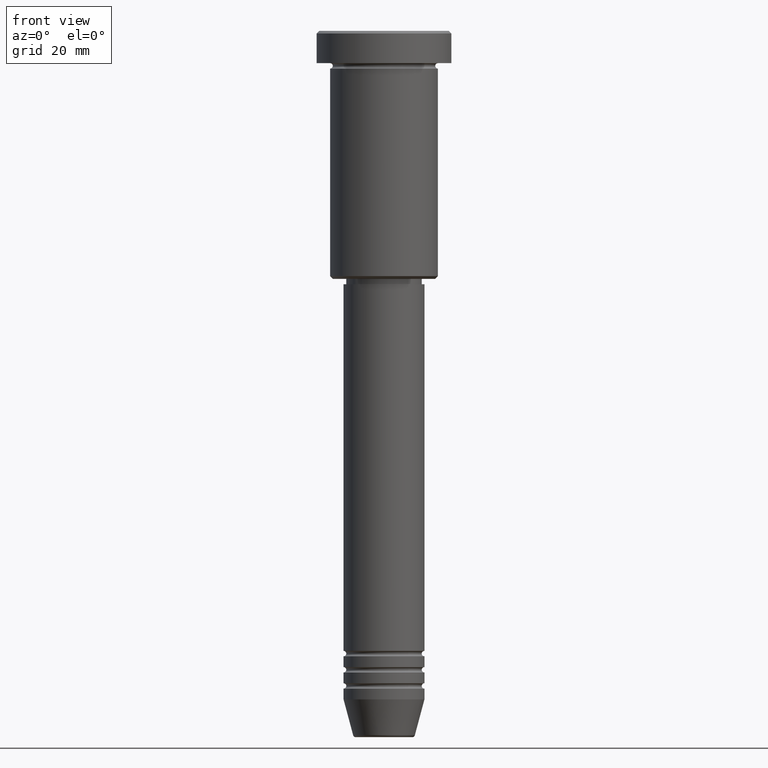
[diagram: clean part render]
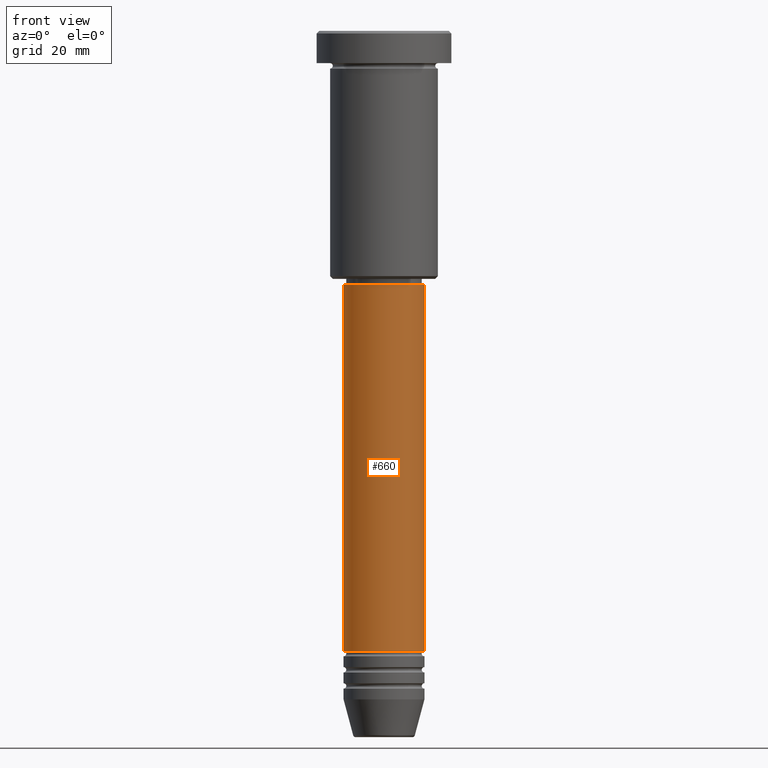
[diagram: same view with one face highlighted and labeled with its STEP entity id]
A machine part, front view. The second image highlights one B-rep face of the part: STEP entity #660.
In plain terms, the highlighted cylindrical surface (partial cylindrical patch) has radius 7.5 mm, axis along (-0, -0, 1).
Its self-contained STEP definition (entity closure, byte-faithful):
#1 = DIRECTION ( 'NONE',  ( -0.000000000000000000, -0.000000000000000000, 1.000000000000000000 ) ) ;
#31 = EDGE_CURVE ( 'NONE', #847, #959, #1066, .T. ) ;
#39 = VERTEX_POINT ( 'NONE', #147 ) ;
#43 = VECTOR ( 'NONE', #602, 1000.000000000000000 ) ;
#142 = VERTEX_POINT ( 'NONE', #1138 ) ;
#147 = CARTESIAN_POINT ( 'NONE',  ( 7.500000000000000000, 0.000000000000000000, -46.99999999999999289 ) ) ;
#159 = CARTESIAN_POINT ( 'NONE',  ( -7.500000000000000000, 9.184850993605147944E-16, 0.000000000000000000 ) ) ;
#163 = DIRECTION ( 'NONE',  ( 1.000000000000000000, 0.000000000000000000, 0.000000000000000000 ) ) ;
#167 = CYLINDRICAL_SURFACE ( 'NONE', #310, 7.500000000000000000 ) ;
#171 = AXIS2_PLACEMENT_3D ( 'NONE', #273, #641, #163 ) ;
#174 = CIRCLE ( 'NONE', #606, 7.500000000000000000 ) ;
#186 = FACE_OUTER_BOUND ( 'NONE', #671, .T. ) ;
#244 = EDGE_CURVE ( 'NONE', #847, #142, #274, .T. ) ;
#273 = CARTESIAN_POINT ( 'NONE',  ( 0.000000000000000000, 0.000000000000000000, -114.9999999999999574 ) ) ;
#274 = CIRCLE ( 'NONE', #171, 7.500000000000000000 ) ;
#295 = CARTESIAN_POINT ( 'NONE',  ( 0.000000000000000000, 0.000000000000000000, -46.99999999999999289 ) ) ;
#310 = AXIS2_PLACEMENT_3D ( 'NONE', #1096, #1, #922 ) ;
#384 = LINE ( 'NONE', #1016, #1015 ) ;
#396 = DIRECTION ( 'NONE',  ( 1.000000000000000000, 0.000000000000000000, 0.000000000000000000 ) ) ;
#501 = ORIENTED_EDGE ( 'NONE', *, *, #244, .T. ) ;
#503 = ORIENTED_EDGE ( 'NONE', *, *, #823, .T. ) ;
#602 = DIRECTION ( 'NONE',  ( -0.000000000000000000, -0.000000000000000000, 1.000000000000000000 ) ) ;
#606 = AXIS2_PLACEMENT_3D ( 'NONE', #295, #934, #396 ) ;
#641 = DIRECTION ( 'NONE',  ( -0.000000000000000000, -0.000000000000000000, 1.000000000000000000 ) ) ;
#660 = ADVANCED_FACE ( 'NONE', ( #186 ), #167, .T. ) ;
#671 = EDGE_LOOP ( 'NONE', ( #785, #501, #503, #1052 ) ) ;
#785 = ORIENTED_EDGE ( 'NONE', *, *, #31, .F. ) ;
#790 = EDGE_CURVE ( 'NONE', #959, #39, #174, .T. ) ;
#818 = CARTESIAN_POINT ( 'NONE',  ( -7.500000000000000000, 9.184850993605147944E-16, -114.9999999999999574 ) ) ;
#823 = EDGE_CURVE ( 'NONE', #142, #39, #384, .T. ) ;
#847 = VERTEX_POINT ( 'NONE', #818 ) ;
#922 = DIRECTION ( 'NONE',  ( 1.000000000000000000, 0.000000000000000000, 0.000000000000000000 ) ) ;
#930 = DIRECTION ( 'NONE',  ( -0.000000000000000000, -0.000000000000000000, 1.000000000000000000 ) ) ;
#934 = DIRECTION ( 'NONE',  ( -0.000000000000000000, -0.000000000000000000, 1.000000000000000000 ) ) ;
#959 = VERTEX_POINT ( 'NONE', #986 ) ;
#986 = CARTESIAN_POINT ( 'NONE',  ( -7.500000000000000000, 9.184850993605147944E-16, -46.99999999999999289 ) ) ;
#1015 = VECTOR ( 'NONE', #930, 1000.000000000000000 ) ;
#1016 = CARTESIAN_POINT ( 'NONE',  ( 7.500000000000000000, 0.000000000000000000, 0.000000000000000000 ) ) ;
#1052 = ORIENTED_EDGE ( 'NONE', *, *, #790, .F. ) ;
#1066 = LINE ( 'NONE', #159, #43 ) ;
#1096 = CARTESIAN_POINT ( 'NONE',  ( 0.000000000000000000, 0.000000000000000000, 0.000000000000000000 ) ) ;
#1138 = CARTESIAN_POINT ( 'NONE',  ( 7.500000000000000000, 0.000000000000000000, -114.9999999999999574 ) ) ;